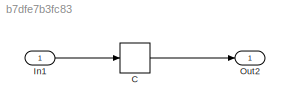
MODEL slx_b7dfe7b3fc83
KIND model
CONFIG AbsTol = auto
CONFIG EnableMultiTasking = off
CONFIG FixedStep = 0.1
CONFIG MaxStep = auto
CONFIG MinStep = auto
CONFIG RelTol = 1e-3
CONFIG SampleTimeConstraint = Unconstrained
CONFIG Solver = FixedStepAuto
CONFIG SolverName = FixedStepAuto
CONFIG StartTime = 0.0
CONFIG StopTime = 20
WORKSPACE source: MAT-file member
WORKSPACE input_struct: struct (value not decoded)
BLOCK [CombinatorialLogic] C
  TruthTable = [0 20;30 1;10 1;1 7;0 1;1 0;5 0;1 1]
BLOCK [Inport] In1
  IconDisplay = Port number
BLOCK [Outport] Out2
  IconDisplay = Port number
LINE C:1 -> Out2:1
LINE In1:1 -> C:1
